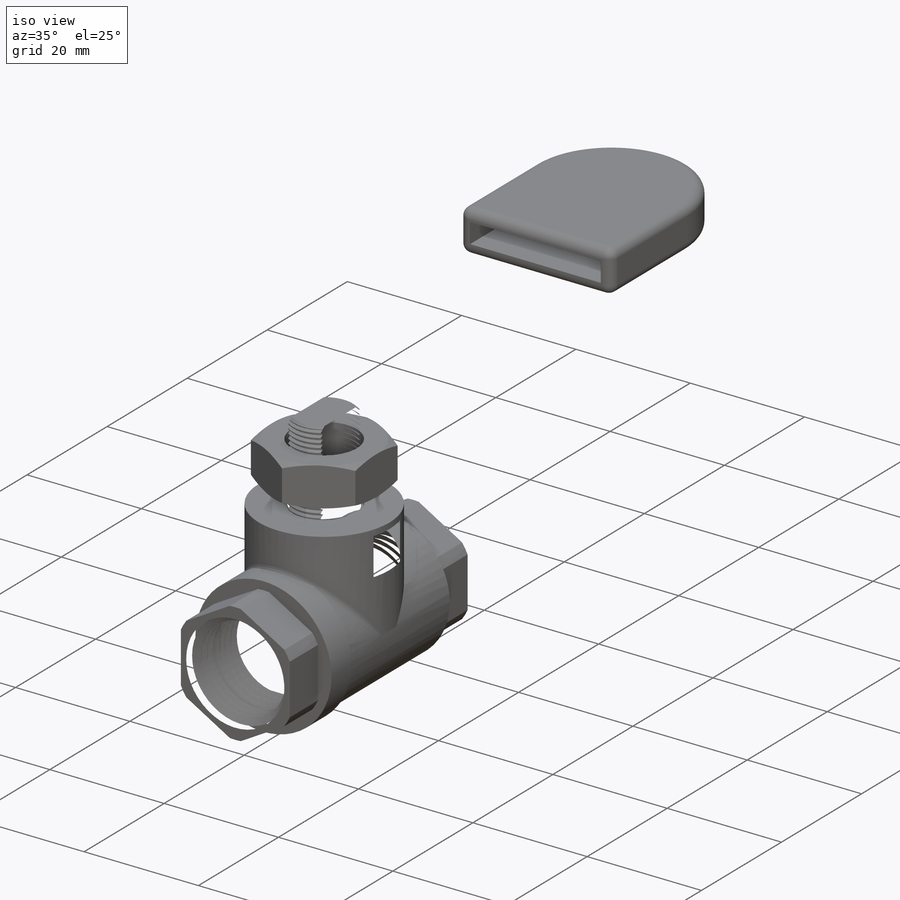
[diagram: iso view]
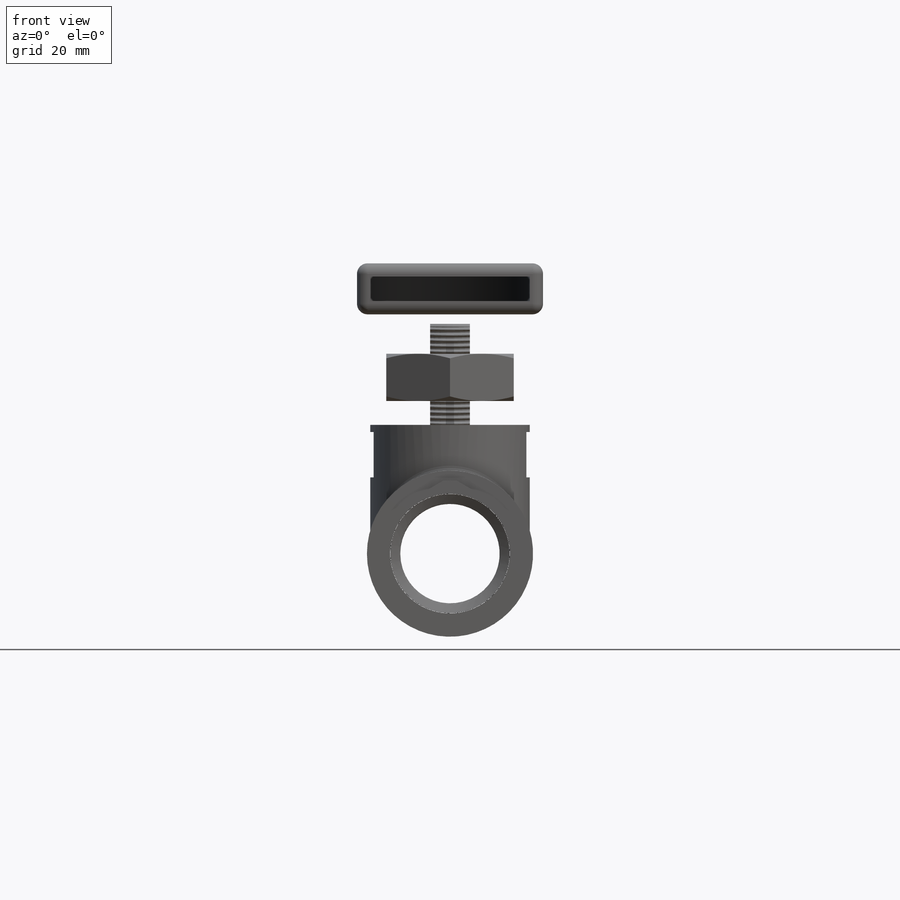
[diagram: front view]
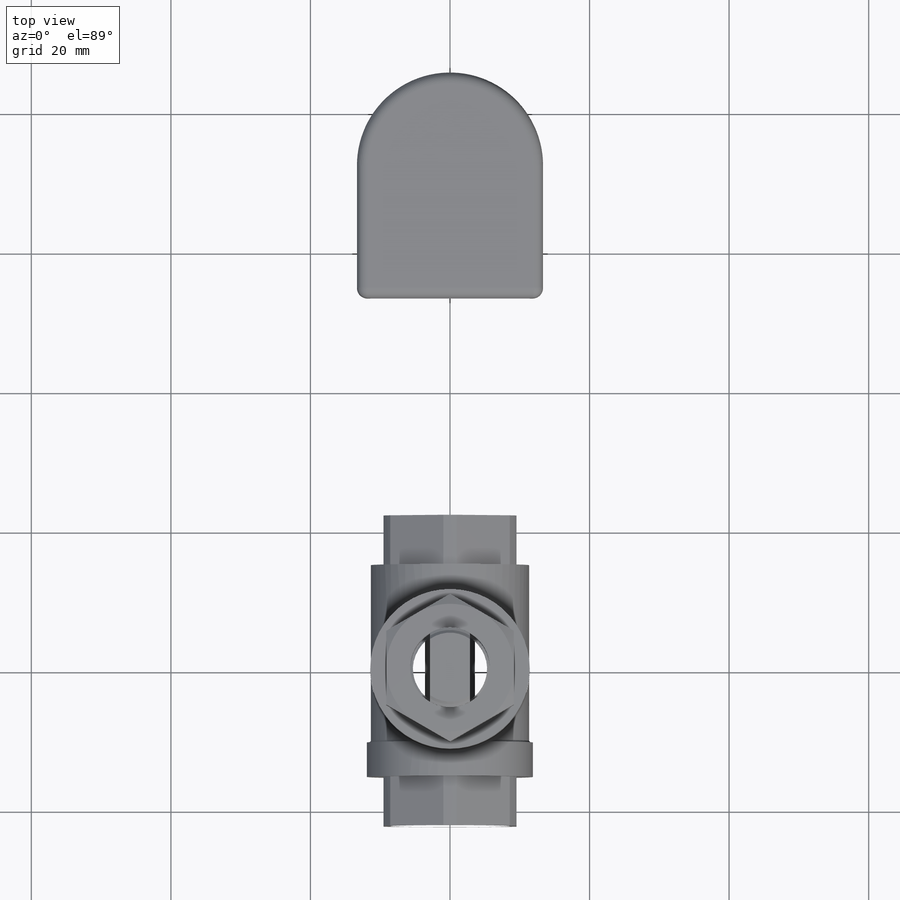
[diagram: top view]
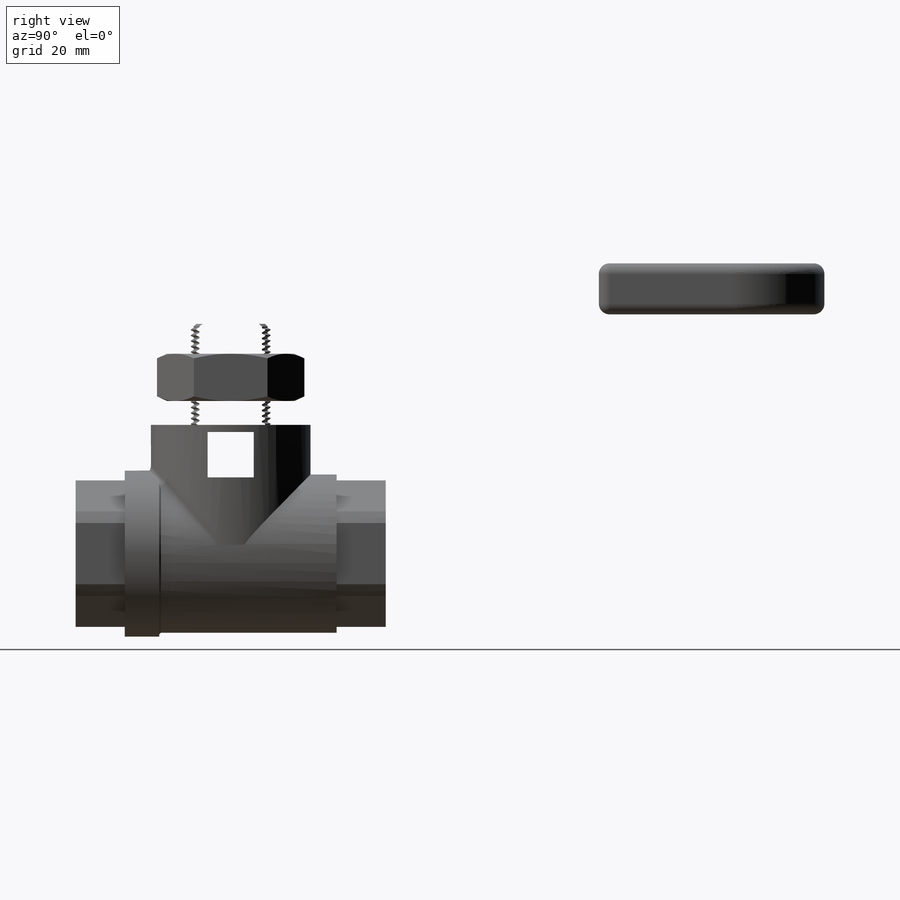
[diagram: right view]
SOLIDWORKS PART (.sldprt)
format: sldprt  version: not decoded by parser v0  size: 3,266,560 bytes
history: native  units: mm
features: sketch x33, extrude x16, cut_extrude x8, fillet x7, revolve x4, cut_revolve x4, boolean_combine x2, material x1, mirror x1, chamfer x1, pattern_linear x1, plane x1, pattern_circular x1 (+13 scaffold rows collapsed)
feature tree (93):
  scaffold x13  (default folders/planes/origin — collapsed)
  material  "Material <not specified>"
  sketch  "Sketch1"  dims[c1.D1=~16.540476mm c2.D1=60.0deg c2.E0=15.2908mm c2.Thread Pitch=~1.411111mm c2.D4=~0.177469mm c3.D4=3.58deg c3.D5=~0.078395mm c3.D2=~0.046567mm c3.D3=~0.053797mm c3.L2 Thread Engagement=10.3632mm c3.l Thread Length=11.9888mm c3.ID=102.2604mm c3.Pipe OD=114.3mm c3.Overall Length=304.8mm c4.D5=33.02mm c4.D6=6.0198mm c4.Body Length=44.45mm c5.D6=~17.165579mm c5.D5=15.0]
  revolve  "Revolve1"  Angle=360deg
  sketch  "Sketch6"
  cut_revolve  "Cut-Revolve3"  Angle=360deg
  sketch  "Sketch7"  dims[c1.Min ID=7.112mm c1.D1=~14.44824mm c2.D1=45.0deg]
  revolve  "Revolve3"  Angle=360deg
  mirror  "Mirror2"
  sketch  "Sketch8"  dims[Body Hex=19.05mm]
  extrude  "Extrude1"  [1 undecoded]
  sketch  "Sketch9"  dims[c1.D1=~4.938889mm c1.D2=23.8125mm c1.D3=~41.183042mm c2.D3=135.0deg c2.D4=~4.938889mm c2.D5=~47.571885mm]
  revolve  "Revolve4"  Angle=360deg
  sketch  "Sketch10"  dims[c1.Handle Height=80.264mm c1.Handle Length=85.09mm c1.D3=22.86mm c1.D4=7.62mm c1.D5=~22.956165mm c1.D6=3.175mm c1.D7=1.27mm c1.D8=0.254mm c1.D9=1.27mm c1.D10=~10.208321mm c2.D10=150.0deg c2.D11=0.0254mm c2.D12=0.0254mm c2.D13=15.24mm c2.D14=0.762mm c2.D2=1.905mm c2.D4=~88.307262mm c3.D4=155.0deg c3.D10=11.4046mm c3.D15=7.112mm c3.D16=8.255mm c3.D17=1.27mm c3.D18=~174.72117mm c3.Handle Height=34.29mm]
  revolve  "Revolve5"  Angle=360deg
  chamfer  "Chamfer1"  Distance=0.762mm Angle=45deg
  fillet  "Fillet5"  Radius=1.27mm
  sketch  "Sketch20"  dims[c1.D1=~0.099219mm c1.D2=~0.198437mm c1.D3=~0.79375mm c1.D4=~1.570135mm c2.D4=60.0deg c2.D5=~0.79375mm]
  cut_revolve  "Cut-Revolve6"  Angle=360deg
  pattern_linear  "LPattern1"  Count1=2 Count2=19 Spacing1=0.79375mm Spacing2=0.79375mm
  sketch  "Sketch26"  dims[D1=0.0mm]
  extrude  "Extrude8"  Depth=0.127mm
  sketch  "Sketch16"  dims[D1=0.508mm]
  cut_revolve  "Cut-Revolve5"  Angle=360deg
  boolean_combine  "Combine1"
  plane  "Plane2"
  sketch  "Sketch27"  dims[D1=5.7023mm]
  cut_extrude  "Cut-Extrude3"  [1 undecoded]
  sketch  "Sketch11"  dims[D1=1.905mm]
  extrude  "Extrude2"  Depth=22.86mm
  fillet  "Fillet1"  Radius=0.508mm
  fillet  "Fillet2"  Radius=3.683mm
  sketch  "Sketch29"
  pattern_circular  "CirPattern1"  Count=2 Angle=90deg
  sketch  "Sketch30"  dims[D1=0.0mm]
  extrude  "Extrude9"  [1 undecoded]
  boolean_combine  "Combine2"
  sketch  "Sketch31"  dims[D1=7.62mm D2=3.81mm]
  cut_extrude  "Cut-Extrude5"  [1 undecoded]
  sketch  "Sketch21"
  cut_extrude  "Cut-Extrude1"  [1 undecoded]
  sketch  "Sketch32"  dims[c1.D1=1.27mm c1.D2=0.127mm c1.D3=~17.652805mm c2.D3=135.0deg]
  extrude  "Extrude10"  Depth=6.604mm
  fillet  "Fillet3"  Radius=11.43mm
  sketch  "Sketch12"  dims[D1=1.905mm D2=2.54mm]
  extrude  "Extrude3"  Depth=1.905mm
  sketch  "Sketch13"  dims[D1=0.0mm]
  extrude  "Extrude4"  Depth=1.905mm
  sketch  "Sketch14"  dims[D1=0.0mm]
  extrude  "Extrude5"  [1 undecoded]
  fillet  "Fillet4"  Radius=1.524mm
  sketch  "Sketch15"  dims[D1=18.288mm]
  extrude  "Extrude6"  Depth=6.773333mm
  sketch  "Sketch22"  dims[c1.D1=~1.288633mm c2.D1=25.0deg c2.D2=18.288mm]
  cut_revolve  "Cut-Revolve7"  Angle=360deg
  sketch  "Sketch33"  dims[c1.D1=2.032mm c1.D2=3.429mm c1.D3=2.032mm c1.D4=1.778mm c2.D2=1.27mm]
  extrude  "Extrude11"  Depth=0.254mm
  sketch  "Sketch34"  dims[D1=1.27mm D2=2.54mm D3=2.54mm D4=1.778mm]
  extrude  "Extrude12"  Depth=1.778mm
  sketch  "Sketch35"
  extrude  "Extrude13"  Depth=1.778mm
  sketch  "Sketch36"  dims[D1=7.239mm]
  extrude  "Extrude14"  Depth=1.778mm
  sketch  "Sketch37"
  extrude  "Extrude15"  Depth=1.778mm
  sketch  "Sketch38"  dims[D1=0.254mm]
  extrude  "Extrude16"  Depth=1.778mm
  sketch  "Sketch39"  dims[D1=0.508mm]
  extrude  "Extrude17"  [1 undecoded]
  sketch  "Sketch40"  dims[D1=0.254mm D2=0.254mm]
  cut_extrude  "Cut-Extrude6"  [1 undecoded]
  sketch  "Sketch41"  dims[D1=7.3152mm]
  cut_extrude  "Cut-Extrude7"  [1 undecoded]
  sketch  "Sketch42"  dims[D1=0.0mm]
  cut_extrude  "Cut-Extrude8"  Depth=0.254mm
  sketch  "Sketch43"  dims[D1=0.0mm]
  cut_extrude  "Cut-Extrude9"  Depth=0.254mm
  fillet  "Fillet6"  Radius=0.254mm
  fillet  "Fillet7"  Radius=2.032mm
  sketch  "Sketch44"  dims[D2=0.254mm D1=0.0mm]
  cut_extrude  "Cut-Extrude10"  [1 undecoded]
decode coverage: 60 of 78 modeling features carry decoded parameters
note: ~ marks probable driven/reference dimensions
note: 10 parameter values undecoded
summary: no parameter record found for 10 features
note: suppression state not decoded; provenance and decode notes live in map.json
